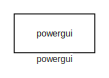
[diagram: root canvas - part 1/3, top left region]
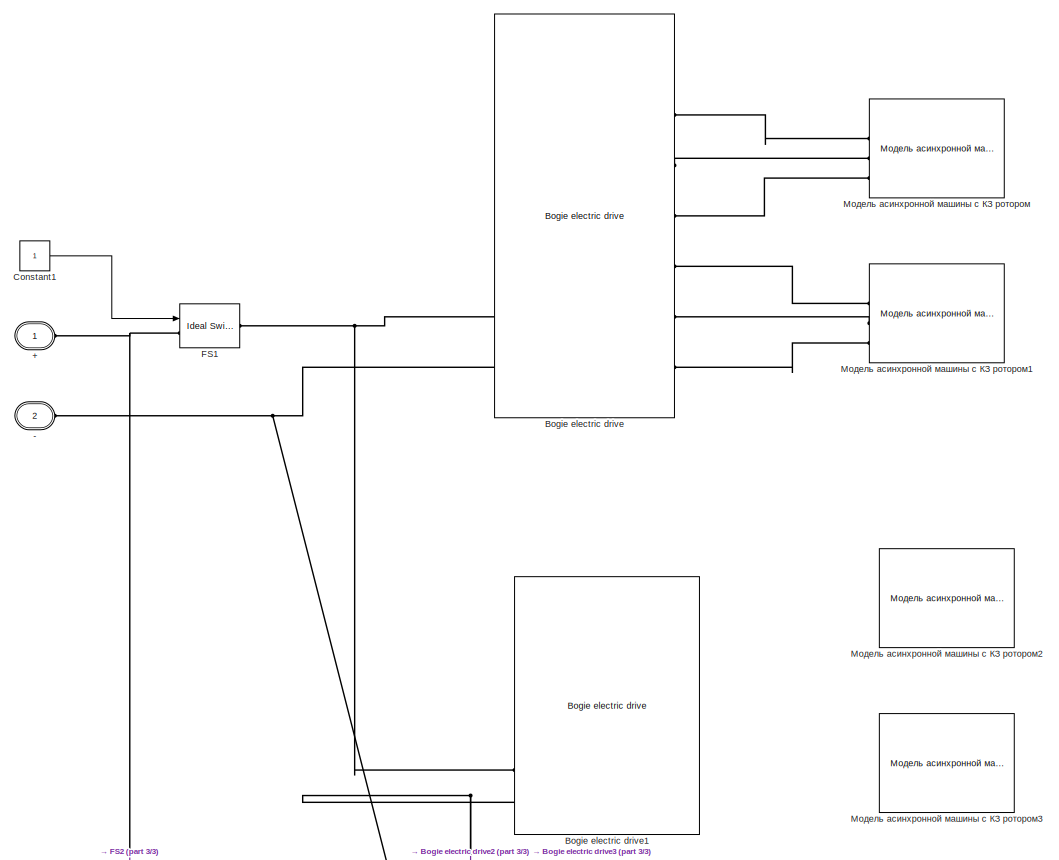
[diagram: root canvas - part 2/3, full width, middle band]
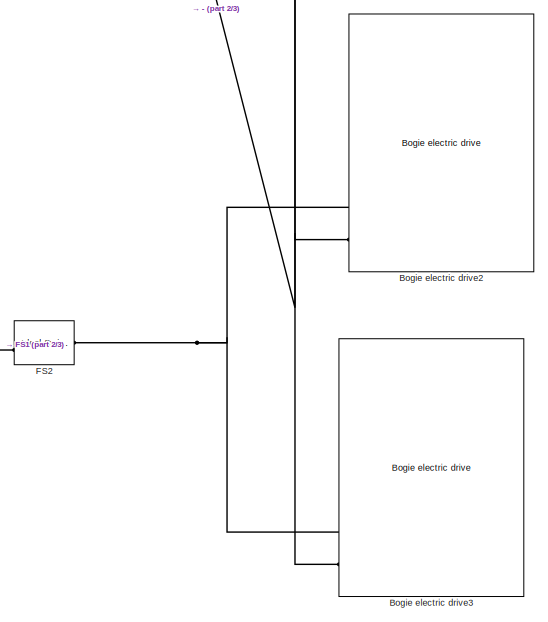
[diagram: root canvas - part 3/3, bottom center region]
MODEL slx_6dda71597644
KIND model
CONFIG AbsTol = auto
CONFIG EnableMultiTasking = off
CONFIG FixedStep = auto
CONFIG MaxStep = 1e-4
CONFIG MinStep = auto
CONFIG RelTol = 1e-3
CONFIG SampleTimeConstraint = Unconstrained
CONFIG Solver = VariableStepAuto
CONFIG SolverName = VariableStepAuto
CONFIG StartTime = 0.0
CONFIG StopTime = 10.0
BLOCK [PMIOPort] +
  Port = 1
  Side = Left
  Tag = PMCPort
BLOCK [PMIOPort] -
  Port = 2
  Side = Left
  Tag = PMCPort
BLOCK [Reference] Bogie electric drive  REF=eltreclib/Преобразователи 2ЭС10/Bogie electric drive  (lib defined in slx_39f3e03e972e, slx_510e682dd691)
  Ports = [5, 1, 0, 0, 0, 2, 6]
  SourceBlock = eltreclib/Преобразователи 2ЭС10/Bogie electric drive
BLOCK [Reference] Bogie electric drive1  REF=eltreclib/Преобразователи 2ЭС10/Bogie electric drive  (lib defined in slx_39f3e03e972e, slx_510e682dd691)
  Ports = [5, 1, 0, 0, 0, 2, 6]
  SourceBlock = eltreclib/Преобразователи 2ЭС10/Bogie electric drive
BLOCK [Reference] Bogie electric drive2  REF=eltreclib/Преобразователи 2ЭС10/Bogie electric drive  (lib defined in slx_39f3e03e972e, slx_510e682dd691)
  Ports = [5, 1, 0, 0, 0, 2, 6]
  SourceBlock = eltreclib/Преобразователи 2ЭС10/Bogie electric drive
BLOCK [Reference] Bogie electric drive3  REF=eltreclib/Преобразователи 2ЭС10/Bogie electric drive  (lib defined in slx_39f3e03e972e, slx_510e682dd691)
  Ports = [5, 1, 0, 0, 0, 2, 6]
  SourceBlock = eltreclib/Преобразователи 2ЭС10/Bogie electric drive
BLOCK [Constant] Constant1
BLOCK [Reference] FS1  REF=powerlib/Power
Electronics/Ideal Switch
  Ports = [1, 0, 0, 0, 0, 1, 1]
  SourceBlock = powerlib/Power\nElectronics/Ideal Switch
  SourceProductBaseCode = PS
  SourceProductName = Simscape Power Systems
  SourceType = Ideal Switch
BLOCK [Reference] FS2  REF=powerlib/Power
Electronics/Ideal Switch
  Ports = [1, 0, 0, 0, 0, 1, 1]
  SourceBlock = powerlib/Power\nElectronics/Ideal Switch
  SourceProductBaseCode = PS
  SourceProductName = Simscape Power Systems
  SourceType = Ideal Switch
BLOCK [Reference] powergui  REF=powerlib/powergui
  Ports = []
  Priority = 1
  SourceBlock = powerlib/powergui
  SourceProductBaseCode = PS
  SourceProductName = Simscape Power Systems
  SourceType = PSB option menu block
BLOCK [Reference] Модель асинхронной машины с КЗ ротором  REF=eltreclib/Модель асинхронной машины  (lib defined in slx_39f3e03e972e, slx_510e682dd691)
с КЗ ротором
  Ports = [1, 3, 0, 0, 0, 3]
  SourceBlock = eltreclib/Модель асинхронной машины\nс КЗ ротором
  SourceProductName = Electric Traction
  SourceType = Модель асинхронной машины
BLOCK [Reference] Модель асинхронной машины с КЗ ротором1  REF=eltreclib/Модель асинхронной машины  (lib defined in slx_39f3e03e972e, slx_510e682dd691)
с КЗ ротором
  Ports = [1, 3, 0, 0, 0, 3]
  SourceBlock = eltreclib/Модель асинхронной машины\nс КЗ ротором
  SourceProductName = Electric Traction
  SourceType = Модель асинхронной машины
BLOCK [Reference] Модель асинхронной машины с КЗ ротором2  REF=eltreclib/Модель асинхронной машины  (lib defined in slx_39f3e03e972e, slx_510e682dd691)
с КЗ ротором
  Ports = [1, 3, 0, 0, 0, 3]
  SourceBlock = eltreclib/Модель асинхронной машины\nс КЗ ротором
  SourceProductName = Electric Traction
  SourceType = Модель асинхронной машины
BLOCK [Reference] Модель асинхронной машины с КЗ ротором3  REF=eltreclib/Модель асинхронной машины  (lib defined in slx_39f3e03e972e, slx_510e682dd691)
с КЗ ротором
  Ports = [1, 3, 0, 0, 0, 3]
  SourceBlock = eltreclib/Модель асинхронной машины\nс КЗ ротором
  SourceProductName = Electric Traction
  SourceType = Модель асинхронной машины
LINE Constant1:1 -> FS1:1
PNET net1: +:RConn1 -- FS1:LConn1 -- FS2:LConn1
PNET net2: -:RConn1 -- Bogie electric drive1:LConn2 -- Bogie electric drive2:LConn2 -- Bogie electric drive3:LConn2 -- Bogie electric drive:LConn2
PNET net3: Bogie electric drive1:LConn1 -- Bogie electric drive:LConn1 -- FS1:RConn1
PNET net4: Bogie electric drive2:LConn1 -- Bogie electric drive3:LConn1 -- FS2:RConn1
PLINE Bogie electric drive:RConn1 -- Модель асинхронной машины с КЗ ротором:LConn1
PLINE Bogie electric drive:RConn2 -- Модель асинхронной машины с КЗ ротором:LConn2
PLINE Bogie electric drive:RConn3 -- Модель асинхронной машины с КЗ ротором:LConn3
PLINE Bogie electric drive:RConn4 -- Модель асинхронной машины с КЗ ротором1:LConn1
PLINE Bogie electric drive:RConn5 -- Модель асинхронной машины с КЗ ротором1:LConn2
PLINE Bogie electric drive:RConn6 -- Модель асинхронной машины с КЗ ротором1:LConn3
note: PNET lines group multi-terminal physical nets as a canonical sorted terminal list (undirected conserving connections); 2-terminal nets keep the pairwise PLINE form
